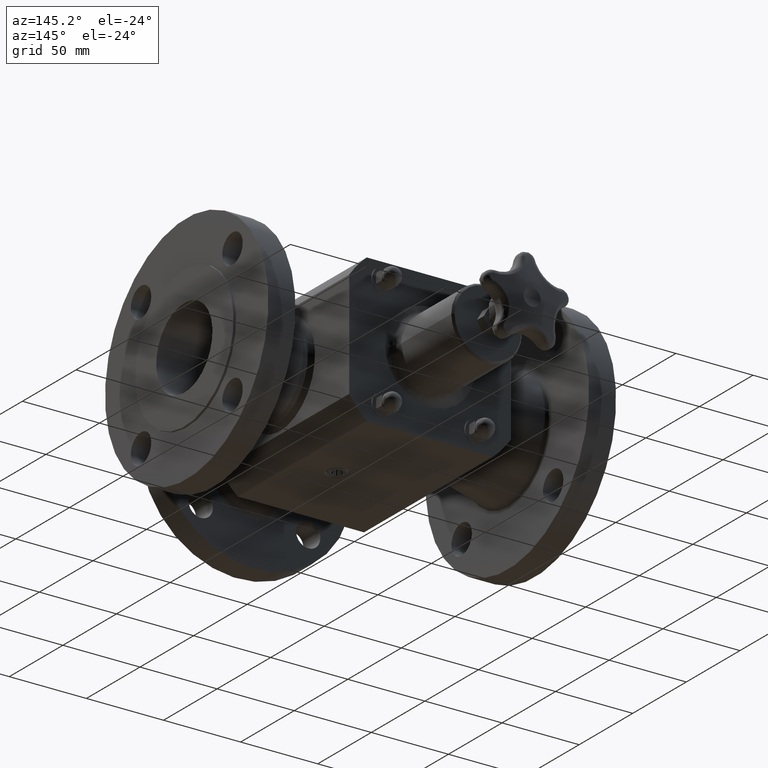
[diagram: clean part render]
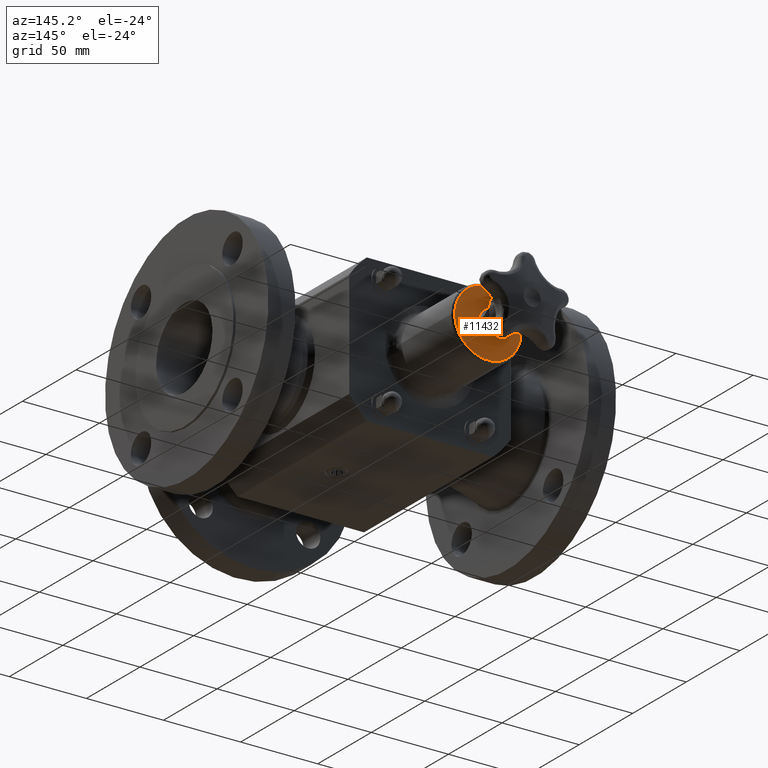
[diagram: same view with one face highlighted and labeled with its STEP entity id]
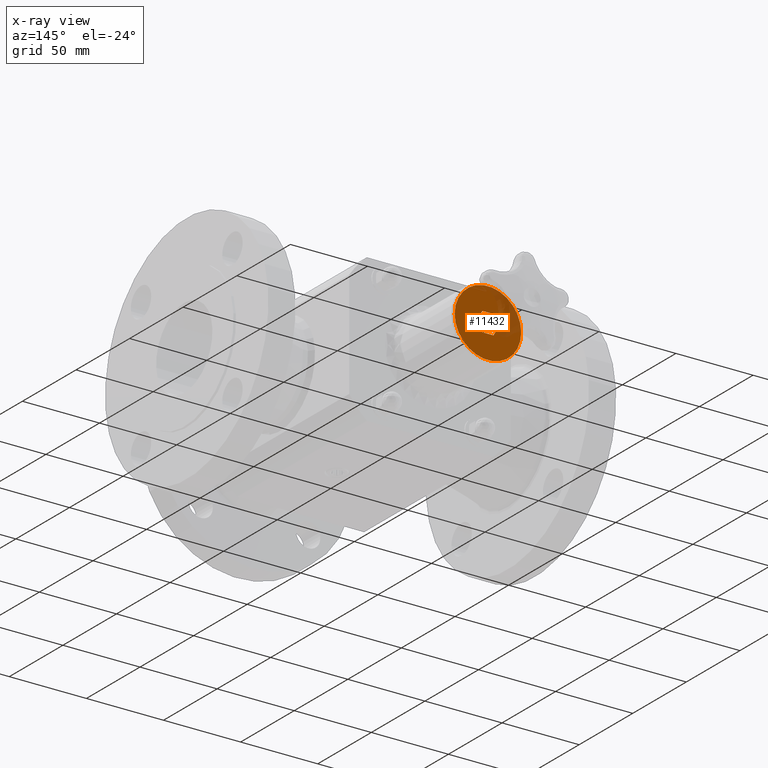
[diagram: x-ray of the same camera — body ghosted, the highlighted face saturated]
A machine part, auxiliary view. The second image highlights one B-rep face of the part: STEP entity #11432.
The next image is the same camera in x-ray: the body ghosted, the highlighted face saturated — about 23% of this face is hidden behind the body in this view.
In plain terms, the highlighted planar face has unit normal (0, 1, 0).
Its self-contained STEP definition (entity closure, byte-faithful):
#8450=CARTESIAN_POINT('',(-0.282324281633732,6.875000000000000,-5.537173E-016));
#8451=VERTEX_POINT('',#8450);
#8458=CARTESIAN_POINT('',(-0.141162140816869,6.875000000000000,0.244500000000000));
#8459=VERTEX_POINT('',#8458);
#8460=CARTESIAN_POINT('',(-0.141162140816869,6.875000000000000,0.244500000000000));
#8461=DIRECTION('',(-0.500000000000000,0.0,-0.866025403784439));
#8462=VECTOR('',#8461,0.282324281633727);
#8463=LINE('',#8460,#8462);
#8464=EDGE_CURVE('',#8459,#8451,#8463,.T.);
#8481=CARTESIAN_POINT('',(-0.141162140816868,6.875000000000000,-0.244500000000000));
#8482=VERTEX_POINT('',#8481);
#8489=CARTESIAN_POINT('',(-0.282324281633732,6.875000000000000,-6.106227E-016));
#8490=DIRECTION('',(0.500000000000001,0.0,-0.866025403784438));
#8491=VECTOR('',#8490,0.282324281633727);
#8492=LINE('',#8489,#8491);
#8493=EDGE_CURVE('',#8451,#8482,#8492,.T.);
#8505=CARTESIAN_POINT('',(0.141162140816858,6.875000000000000,-0.244500000000000));
#8506=VERTEX_POINT('',#8505);
#8513=CARTESIAN_POINT('',(-0.141162140816868,6.875000000000000,-0.244500000000000));
#8514=DIRECTION('',(1.0,0.0,0.0));
#8515=VECTOR('',#8514,0.282324281633727);
#8516=LINE('',#8513,#8515);
#8517=EDGE_CURVE('',#8482,#8506,#8516,.T.);
#8529=CARTESIAN_POINT('',(0.282324281633722,6.875000000000000,-2.338949E-016));
#8530=VERTEX_POINT('',#8529);
#8537=CARTESIAN_POINT('',(0.141162140816858,6.875000000000000,-0.244500000000000));
#8538=DIRECTION('',(0.500000000000000,0.0,0.866025403784439));
#8539=VECTOR('',#8538,0.282324281633727);
#8540=LINE('',#8537,#8539);
#8541=EDGE_CURVE('',#8506,#8530,#8540,.T.);
#8553=CARTESIAN_POINT('',(0.141162140816858,6.875000000000000,0.244500000000000));
#8554=VERTEX_POINT('',#8553);
#8561=CARTESIAN_POINT('',(0.282324281633722,6.875000000000000,-2.081668E-016));
#8562=DIRECTION('',(-0.500000000000000,0.0,0.866025403784438));
#8563=VECTOR('',#8562,0.282324281633727);
#8564=LINE('',#8561,#8563);
#8565=EDGE_CURVE('',#8530,#8554,#8564,.T.);
#8578=CARTESIAN_POINT('',(0.141162140816858,6.875000000000000,0.244500000000000));
#8579=DIRECTION('',(-1.0,0.0,0.0));
#8580=VECTOR('',#8579,0.282324281633727);
#8581=LINE('',#8578,#8580);
#8582=EDGE_CURVE('',#8554,#8459,#8581,.T.);
#11408=CARTESIAN_POINT('',(0.518749999999994,6.875000000000000,-4.450936E-016));
#11409=DIRECTION('',(0.0,1.0,0.0));
#11410=DIRECTION('',(0.0,0.0,1.0));
#11411=AXIS2_PLACEMENT_3D('',#11408,#11409,#11410);
#11412=PLANE('',#11411);
#11413=CARTESIAN_POINT('',(0.849999999999995,6.875000000000001,-5.618443E-016));
#11414=VERTEX_POINT('',#11413);
#11415=CARTESIAN_POINT('',(-5.256055E-015,6.875000000000000,-2.622574E-016));
#11416=DIRECTION('',(0.0,-1.0,0.0));
#11417=DIRECTION('',(1.0,0.0,0.0));
#11418=AXIS2_PLACEMENT_3D('',#11415,#11416,#11417);
#11419=CIRCLE('',#11418,0.850000000000000);
#11420=EDGE_CURVE('',#11414,#11414,#11419,.T.);
#11421=ORIENTED_EDGE('',*,*,#11420,.F.);
#11422=EDGE_LOOP('',(#11421));
#11423=FACE_OUTER_BOUND('',#11422,.T.);
#11424=ORIENTED_EDGE('',*,*,#8464,.T.);
#11425=ORIENTED_EDGE('',*,*,#8493,.T.);
#11426=ORIENTED_EDGE('',*,*,#8517,.T.);
#11427=ORIENTED_EDGE('',*,*,#8541,.T.);
#11428=ORIENTED_EDGE('',*,*,#8565,.T.);
#11429=ORIENTED_EDGE('',*,*,#8582,.T.);
#11430=EDGE_LOOP('',(#11424,#11425,#11426,#11427,#11428,#11429));
#11431=FACE_BOUND('',#11430,.T.);
#11432=ADVANCED_FACE('',(#11423,#11431),#11412,.T.);